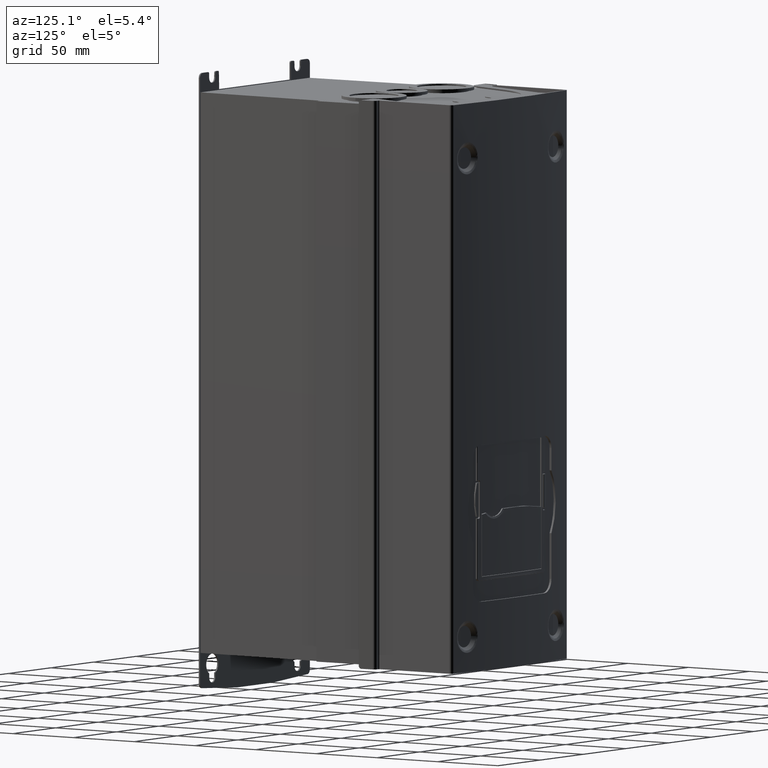
[diagram: clean part render]
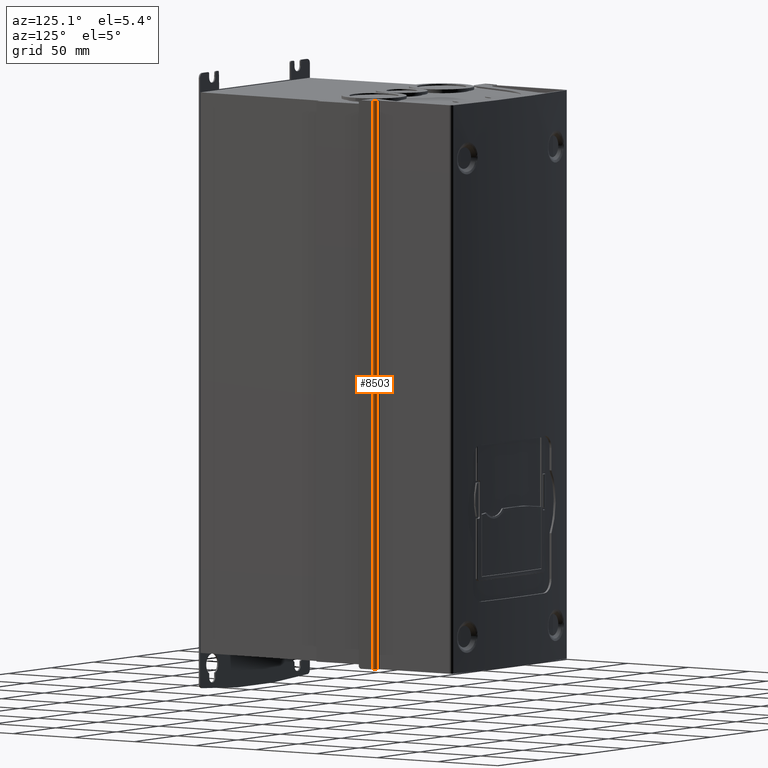
[diagram: same view with one face highlighted and labeled with its STEP entity id]
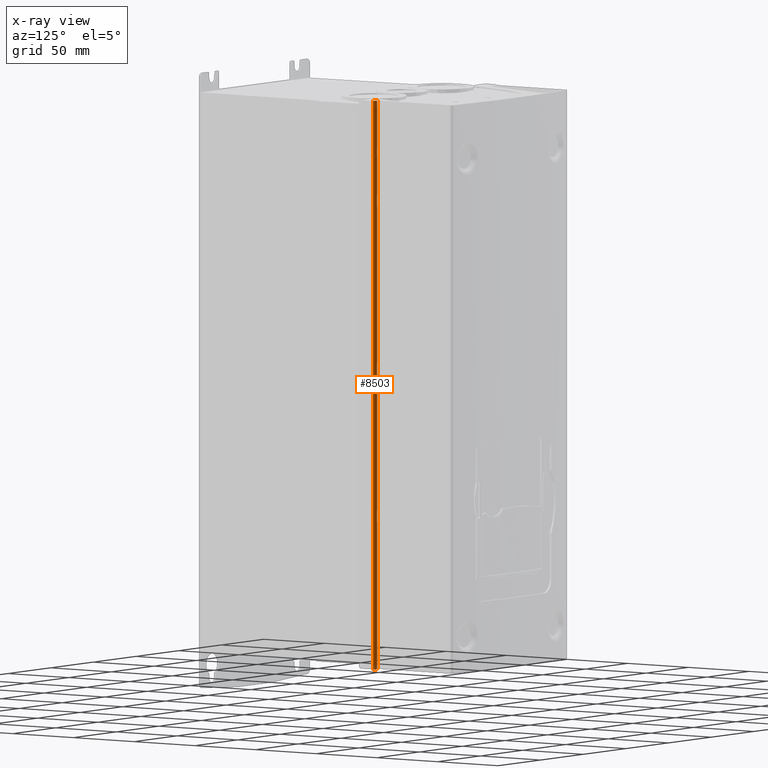
[diagram: x-ray of the same camera — body ghosted, the highlighted face saturated]
A machine part, auxiliary view. The second image highlights one B-rep face of the part: STEP entity #8503.
The next image is the same camera in x-ray: the body ghosted, the highlighted face saturated — about 0% of this face is hidden behind the body in this view.
In plain terms, the highlighted cylindrical surface (edge-blend (fillet) strip) has radius 2.25 mm, axis along (0, 0, 1).
Its self-contained STEP definition (entity closure, byte-faithful):
#809=CARTESIAN_POINT('',(5.523094788994E1,2.612412359868E1,1.146372969707E2));
#810=DIRECTION('',(-2.235952403362E-14,0.E0,-1.E0));
#811=DIRECTION('',(-2.542479806935E-11,1.E0,0.E0));
#812=AXIS2_PLACEMENT_3D('',#809,#810,#811);
#978=CARTESIAN_POINT('',(5.523094788993E1,2.612412359868E1,-2.703627030293E2));
#979=DIRECTION('',(2.235952403362E-14,0.E0,1.E0));
#980=DIRECTION('',(9.961946980936E-1,8.715574272622E-2,-2.526374171591E-14));
#981=AXIS2_PLACEMENT_3D('',#978,#979,#980);
#1215=DIRECTION('',(1.304814842032E-14,1.540124449329E-14,1.E0));
#1216=VECTOR('',#1215,3.85E2);
#1217=CARTESIAN_POINT('',(5.747238596064E1,2.632022401985E1,-2.703627030293E2));
#1218=LINE('',#1217,#1216);
#1219=DIRECTION('',(8.548659615690E-14,0.E0,-1.E0));
#1220=VECTOR('',#1219,3.85E2);
#1221=CARTESIAN_POINT('',(5.523094788992E1,2.837412359868E1,1.146372969707E2));
#1222=LINE('',#1221,#1220);
#6950=CARTESIAN_POINT('',(5.523094788992E1,2.837412359868E1,1.146372969707E2));
#6951=VERTEX_POINT('',#6950);
#6952=CARTESIAN_POINT('',(5.747238596065E1,2.632022401983E1,1.146372969707E2));
#6953=VERTEX_POINT('',#6952);
#7006=CARTESIAN_POINT('',(5.747238596064E1,2.632022401985E1,-2.703627030293E2));
#7007=VERTEX_POINT('',#7006);
#7008=CARTESIAN_POINT('',(5.523094788999E1,2.837412359868E1,-2.703627030293E2));
#7009=VERTEX_POINT('',#7008);
#8491=CARTESIAN_POINT('',(5.523094788993E1,2.612412359868E1,-2.703627030293E2));
#8492=DIRECTION('',(2.235952403362E-14,0.E0,1.E0));
#8493=DIRECTION('',(9.961946980917E-1,8.715574274766E-2,-2.227443929415E-14));
#8494=AXIS2_PLACEMENT_3D('',#8491,#8492,#8493);
#8495=CYLINDRICAL_SURFACE('',#8494,2.25E0);
#8496=ORIENTED_EDGE('',*,*,#8136,.F.);
#8498=ORIENTED_EDGE('',*,*,#8497,.T.);
#8499=ORIENTED_EDGE('',*,*,#7992,.F.);
#8500=ORIENTED_EDGE('',*,*,#8476,.T.);
#8501=EDGE_LOOP('',(#8496,#8498,#8499,#8500));
#8502=FACE_OUTER_BOUND('',#8501,.F.);
#8503=ADVANCED_FACE('',(#8502),#8495,.T.);
#813=CIRCLE('',#812,2.25E0);
#982=CIRCLE('',#981,2.25E0);
#7992=EDGE_CURVE('',#6951,#6953,#813,.T.);
#8136=EDGE_CURVE('',#7007,#7009,#982,.T.);
#8476=EDGE_CURVE('',#6951,#7009,#1222,.T.);
#8497=EDGE_CURVE('',#7007,#6953,#1218,.T.);